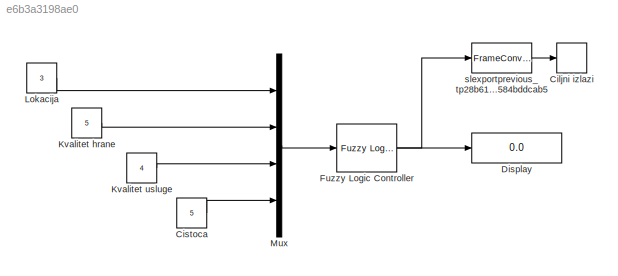
MODEL slx_e6b3a3198ae0
KIND model
BLOCK [ToWorkspace] Ciljni izlazi
  MaxDataPoints = inf
  Ports = [1]
  SampleTime = -1
  VariableName = T
BLOCK [Constant] Cistoca
  Value = 5
BLOCK [Display] Display
  Decimation = 1
  Ports = [1]
BLOCK [Reference] Fuzzy Logic  Controller  REF=fuzblock/Fuzzy Logic   (lib defined in mdl_858b3b3e7478)
Controller
  FIS = restoran
  Ports = [1, 1]
  RTWMemSecDataConstants = Inherit from model
  RTWMemSecDataInternal = Inherit from model
  RTWMemSecDataParameters = Inherit from model
  RTWMemSecFuncExecute = Inherit from model
  RTWMemSecFuncInitTerm = Inherit from model
  SourceBlock = fuzblock/Fuzzy Logic \nController
  SourceType = Fuzzy Inference System
BLOCK [Constant] Kvalitet hrane
  Value = 5
BLOCK [Constant] Kvalitet usluge
  Value = 4
BLOCK [Constant] Lokacija
  Value = 3
BLOCK [Mux] Mux
  DisplayOption = bar
  Ports = [4, 1]
BLOCK [FrameConversion] slexportprevious_tp28b61391_ad36_42bf_ace4_1c584bddcab5
  OutFrame = Sample-based
  Ports = [1, 1]
LINE Cistoca:1 -> Mux:4
NET Fuzzy Logic  Controller:1 -> Display:1, slexportprevious_tp28b61391_ad36_42bf_ace4_1c584bddcab5:1
LINE Kvalitet hrane:1 -> Mux:2
LINE Kvalitet usluge:1 -> Mux:3
LINE Lokacija:1 -> Mux:1
LINE Mux:1 -> Fuzzy Logic  Controller:1
LINE slexportprevious_tp28b61391_ad36_42bf_ace4_1c584bddcab5:1 -> Ciljni izlazi:1
note: NET lines group one-source signal fan-out (src -> all destinations, sorted); 1:1 wires keep LINE
